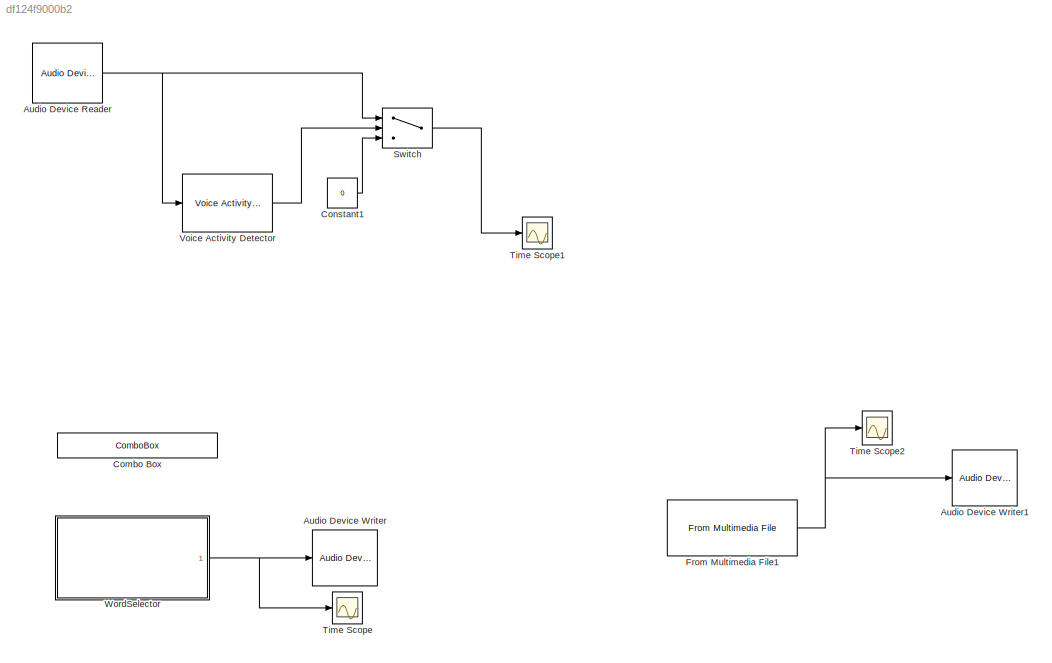
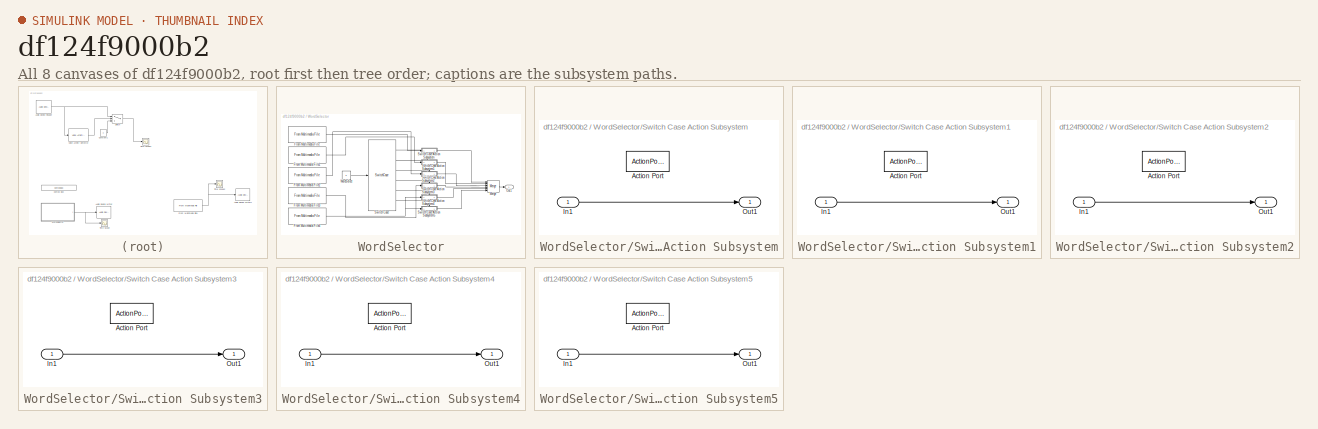
[diagram: thumbnail index - all 8 canvases of the model, root first then tree order]
MODEL slx_df124f9000b2
KIND model
CONFIG AbsTol = auto
CONFIG EnableMultiTasking = off
CONFIG FixedStep = auto
CONFIG MaxStep = auto
CONFIG MinStep = auto
CONFIG RelTol = 1e-3
CONFIG SampleTimeConstraint = Unconstrained
CONFIG Solver = VariableStepAuto
CONFIG SolverName = VariableStepAuto
CONFIG StartTime = 0.0
CONFIG StopTime = 0.5
BLOCK [Reference] Audio Device Reader  REF=audiosources/Audio Device
Reader
  Ports = [0, 1]
  SourceBlock = audiosources/Audio Device\nReader
  SourceProductBaseCode = AU
  SourceType = Audio Device Reader
BLOCK [Reference] Audio Device Writer  REF=dspsnks4/Audio Device
Writer
  Commented = on
  Ports = [1]
  SourceBlock = dspsnks4/Audio Device\nWriter
  SourceProductBaseCode = DS
  SourceType = Audio Device Writer
BLOCK [Reference] Audio Device Writer1  REF=dspsnks4/Audio Device
Writer
  Commented = on
  Ports = [1]
  SourceBlock = dspsnks4/Audio Device\nWriter
  SourceProductBaseCode = DS
  SourceType = Audio Device Writer
BLOCK [ComboBox] Combo Box
  Commented = on
  LabelPosition = Hide
  SelectedLabel = Yes
BLOCK [Constant] Constant1
  Value = 0
BLOCK [Reference] From Multimedia File1  REF=dspvision/From Multimedia File
  Commented = on
  Ports = [0, 1]
  SourceBlock = dspvision/From Multimedia File
  SourceProductBaseCode = DS,HW,VP
  SourceType = From Multimedia File
BLOCK [Switch] Switch
  Criteria = u2 > Threshold
  InputSameDT = off
  SaturateOnIntegerOverflow = off
  Threshold = 0.6
BLOCK [Scope] Time Scope
  Commented = on
  DefaultConfigurationName = spbscopes.TimeScopeBlockCfg
  Floating = off
  NumInputPorts = 1
  Ports = [1]
  ScopeSpecificationString = spbscopes.TimeScopeBlockCfg('CurrentConfiguration', extmgr.ConfigurationSet(extmgr.Configuration('Core','General UI',true,'FigureColor',[0.156862745098039 0.156862745098039 0.156862745098039]),extmgr.Configuration('Core','Source UI',true),extmgr.Configuration('Sources','WiredSimulink',true),extmgr.Configuration('Visuals','Time Domain',true,'DisplayPropertyDefaults',struct('MinYLimReal','-0.54343',...<+1448ch>
  UserDataPersistent = on
BLOCK [Scope] Time Scope1
  DefaultConfigurationName = spbscopes.TimeScopeBlockCfg
  Floating = off
  NumInputPorts = 1
  Ports = [1]
  ScopeSpecificationString = spbscopes.TimeScopeBlockCfg('CurrentConfiguration', extmgr.ConfigurationSet(extmgr.Configuration('Core','General UI',true,'FigureColor',[0.156862745098039 0.156862745098039 0.156862745098039]),extmgr.Configuration('Core','Source UI',true),extmgr.Configuration('Sources','WiredSimulink',true,'DataLoggingVariableName','ScopeData1'),extmgr.Configuration('Visuals','Time Domain',true,'DisplayPropertyDef...<+1462ch>
  UserDataPersistent = on
BLOCK [Scope] Time Scope2
  Commented = on
  DefaultConfigurationName = spbscopes.TimeScopeBlockCfg
  Floating = off
  NumInputPorts = 1
  Ports = [1]
  ScopeSpecificationString = spbscopes.TimeScopeBlockCfg('CurrentConfiguration', extmgr.ConfigurationSet(extmgr.Configuration('Core','General UI',true,'FigureColor',[0.156862745098039 0.156862745098039 0.156862745098039]),extmgr.Configuration('Core','Source UI',true),extmgr.Configuration('Sources','WiredSimulink',true,'DataLoggingVariableName','ScopeData1'),extmgr.Configuration('Visuals','Time Domain',true,'DisplayPropertyDef...<+1473ch>
  UserDataPersistent = on
BLOCK [Reference] Voice Activity Detector  REF=audiomeasurements/Voice Activity Detector
  Ports = [1, 1]
  SourceBlock = audiomeasurements/Voice Activity Detector
  SourceProductBaseCode = AU
  SourceType = audio.simulink.VoiceActivityDetector
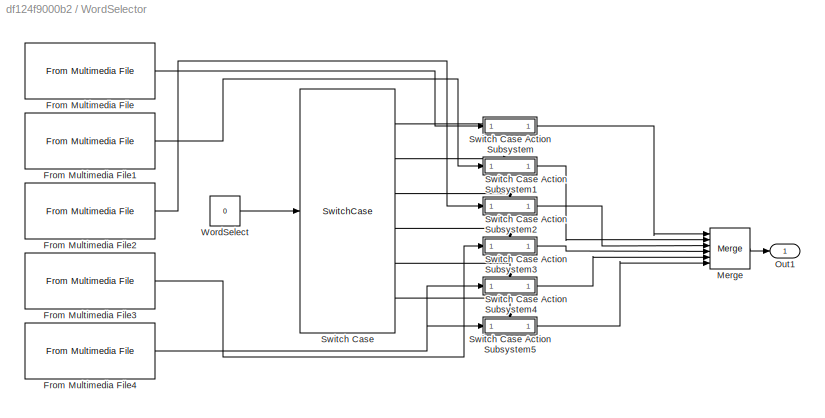
BLOCK [SubSystem] WordSelector
  Commented = on
  Ports = [0, 1]
  RequestExecContextInheritance = off
BLOCK [Reference] WordSelector/From Multimedia File  REF=dspvision/From Multimedia File
  Ports = [0, 1]
  SourceBlock = dspvision/From Multimedia File
  SourceProductBaseCode = DS,HW,VP
  SourceType = From Multimedia File
BLOCK [Reference] WordSelector/From Multimedia File1  REF=dspvision/From Multimedia File
  Ports = [0, 1]
  SourceBlock = dspvision/From Multimedia File
  SourceProductBaseCode = DS,HW,VP
  SourceType = From Multimedia File
BLOCK [Reference] WordSelector/From Multimedia File2  REF=dspvision/From Multimedia File
  Ports = [0, 1]
  SourceBlock = dspvision/From Multimedia File
  SourceProductBaseCode = DS,HW,VP
  SourceType = From Multimedia File
BLOCK [Reference] WordSelector/From Multimedia File3  REF=dspvision/From Multimedia File
  Ports = [0, 1]
  SourceBlock = dspvision/From Multimedia File
  SourceProductBaseCode = DS,HW,VP
  SourceType = From Multimedia File
BLOCK [Reference] WordSelector/From Multimedia File4  REF=dspvision/From Multimedia File
  Ports = [0, 1]
  SourceBlock = dspvision/From Multimedia File
  SourceProductBaseCode = DS,HW,VP
  SourceType = From Multimedia File
BLOCK [Merge] WordSelector/Merge
  Inputs = 6
  Ports = [6, 1]
BLOCK [Outport] WordSelector/Out1
BLOCK [SwitchCase] WordSelector/Switch Case
  CaseConditions = {0,1,2,3,4}
  Ports = [1, 6]
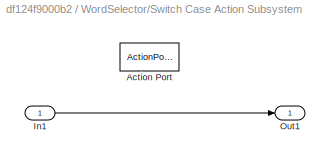
BLOCK [SubSystem] WordSelector/Switch Case Action Subsystem
  Ports = [1, 1, 0, 0, 0, 0, 0, 1]
  RequestExecContextInheritance = off
  TreatAsAtomicUnit = on
BLOCK [ActionPort] WordSelector/Switch Case Action Subsystem/Action Port
  ActionPortLabel = case [ 0 ]:
BLOCK [Inport] WordSelector/Switch Case Action Subsystem/In1
BLOCK [Outport] WordSelector/Switch Case Action Subsystem/Out1
BLOCK [SubSystem] WordSelector/Switch Case Action Subsystem1
  Ports = [1, 1, 0, 0, 0, 0, 0, 1]
  RequestExecContextInheritance = off
  TreatAsAtomicUnit = on
BLOCK [ActionPort] WordSelector/Switch Case Action Subsystem1/Action Port
  ActionPortLabel = case [ 1 ]:
BLOCK [Inport] WordSelector/Switch Case Action Subsystem1/In1
BLOCK [Outport] WordSelector/Switch Case Action Subsystem1/Out1
BLOCK [SubSystem] WordSelector/Switch Case Action Subsystem2
  Ports = [1, 1, 0, 0, 0, 0, 0, 1]
  RequestExecContextInheritance = off
  TreatAsAtomicUnit = on
BLOCK [ActionPort] WordSelector/Switch Case Action Subsystem2/Action Port
  ActionPortLabel = case [ 2 ]:
BLOCK [Inport] WordSelector/Switch Case Action Subsystem2/In1
BLOCK [Outport] WordSelector/Switch Case Action Subsystem2/Out1
BLOCK [SubSystem] WordSelector/Switch Case Action Subsystem3
  Ports = [1, 1, 0, 0, 0, 0, 0, 1]
  RequestExecContextInheritance = off
  TreatAsAtomicUnit = on
BLOCK [ActionPort] WordSelector/Switch Case Action Subsystem3/Action Port
  ActionPortLabel = case [ 3 ]:
BLOCK [Inport] WordSelector/Switch Case Action Subsystem3/In1
BLOCK [Outport] WordSelector/Switch Case Action Subsystem3/Out1
BLOCK [SubSystem] WordSelector/Switch Case Action Subsystem4
  Ports = [1, 1, 0, 0, 0, 0, 0, 1]
  RequestExecContextInheritance = off
  TreatAsAtomicUnit = on
BLOCK [ActionPort] WordSelector/Switch Case Action Subsystem4/Action Port
  ActionPortLabel = case [ 4 ]:
BLOCK [Inport] WordSelector/Switch Case Action Subsystem4/In1
BLOCK [Outport] WordSelector/Switch Case Action Subsystem4/Out1
BLOCK [SubSystem] WordSelector/Switch Case Action Subsystem5
  Ports = [1, 1, 0, 0, 0, 0, 0, 1]
  RequestExecContextInheritance = off
  TreatAsAtomicUnit = on
BLOCK [ActionPort] WordSelector/Switch Case Action Subsystem5/Action Port
  ActionPortLabel = default:
BLOCK [Inport] WordSelector/Switch Case Action Subsystem5/In1
BLOCK [Outport] WordSelector/Switch Case Action Subsystem5/Out1
BLOCK [Constant] WordSelector/WordSelect
  Value = 0
NET Audio Device Reader:1 -> Switch:1, Voice Activity Detector:1
LINE Constant1:1 -> Switch:3
NET From Multimedia File1:1 -> Audio Device Writer1:1, Time Scope2:1
LINE Switch:1 -> Time Scope1:1
LINE Voice Activity Detector:1 -> Switch:2
LINE WordSelector/From Multimedia File1:1 -> WordSelector/Switch Case Action Subsystem1:1
LINE WordSelector/From Multimedia File2:1 -> WordSelector/Switch Case Action Subsystem2:1
LINE WordSelector/From Multimedia File3:1 -> WordSelector/Switch Case Action Subsystem3:1
NET WordSelector/From Multimedia File4:1 -> WordSelector/Switch Case Action Subsystem4:1, WordSelector/Switch Case Action Subsystem5:1
LINE WordSelector/From Multimedia File:1 -> WordSelector/Switch Case Action Subsystem:1
LINE WordSelector/Merge:1 -> WordSelector/Out1:1
LINE WordSelector/Switch Case Action Subsystem/In1:1 -> WordSelector/Switch Case Action Subsystem/Out1:1
LINE WordSelector/Switch Case Action Subsystem1/In1:1 -> WordSelector/Switch Case Action Subsystem1/Out1:1
LINE WordSelector/Switch Case Action Subsystem1:1 -> WordSelector/Merge:2
LINE WordSelector/Switch Case Action Subsystem2/In1:1 -> WordSelector/Switch Case Action Subsystem2/Out1:1
LINE WordSelector/Switch Case Action Subsystem2:1 -> WordSelector/Merge:3
LINE WordSelector/Switch Case Action Subsystem3/In1:1 -> WordSelector/Switch Case Action Subsystem3/Out1:1
LINE WordSelector/Switch Case Action Subsystem3:1 -> WordSelector/Merge:4
LINE WordSelector/Switch Case Action Subsystem4/In1:1 -> WordSelector/Switch Case Action Subsystem4/Out1:1
LINE WordSelector/Switch Case Action Subsystem4:1 -> WordSelector/Merge:5
LINE WordSelector/Switch Case Action Subsystem5/In1:1 -> WordSelector/Switch Case Action Subsystem5/Out1:1
LINE WordSelector/Switch Case Action Subsystem5:1 -> WordSelector/Merge:6
LINE WordSelector/Switch Case Action Subsystem:1 -> WordSelector/Merge:1
LINE WordSelector/Switch Case:1 -> WordSelector/Switch Case Action Subsystem:ifaction
LINE WordSelector/Switch Case:2 -> WordSelector/Switch Case Action Subsystem1:ifaction
LINE WordSelector/Switch Case:3 -> WordSelector/Switch Case Action Subsystem2:ifaction
LINE WordSelector/Switch Case:4 -> WordSelector/Switch Case Action Subsystem3:ifaction
LINE WordSelector/Switch Case:5 -> WordSelector/Switch Case Action Subsystem4:ifaction
LINE WordSelector/Switch Case:6 -> WordSelector/Switch Case Action Subsystem5:ifaction
LINE WordSelector/WordSelect:1 -> WordSelector/Switch Case:1
NET WordSelector:1 -> Audio Device Writer:1, Time Scope:1
note: NET lines group one-source signal fan-out (src -> all destinations, sorted); 1:1 wires keep LINE
